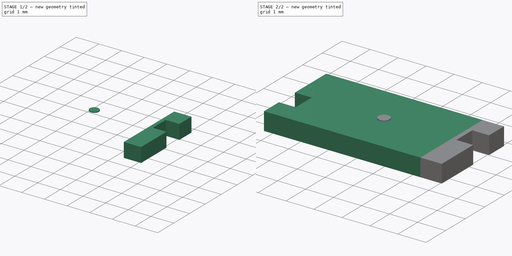
[diagram: build sequence overview — one tinted view per stage of 2, left to right]
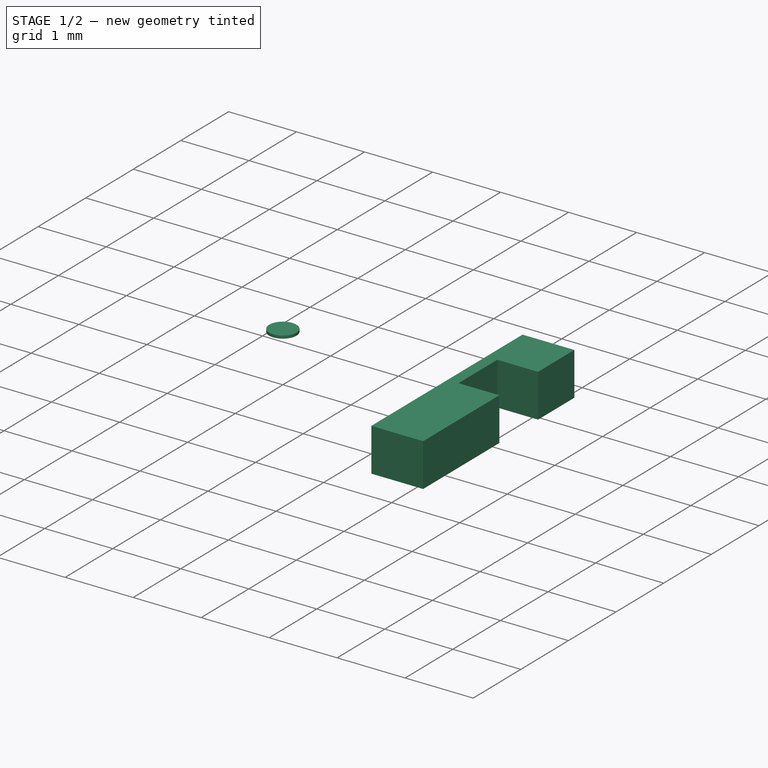
[diagram: stage 1 of 2 — iso view after this stage's code; geometry added in this stage tinted green]
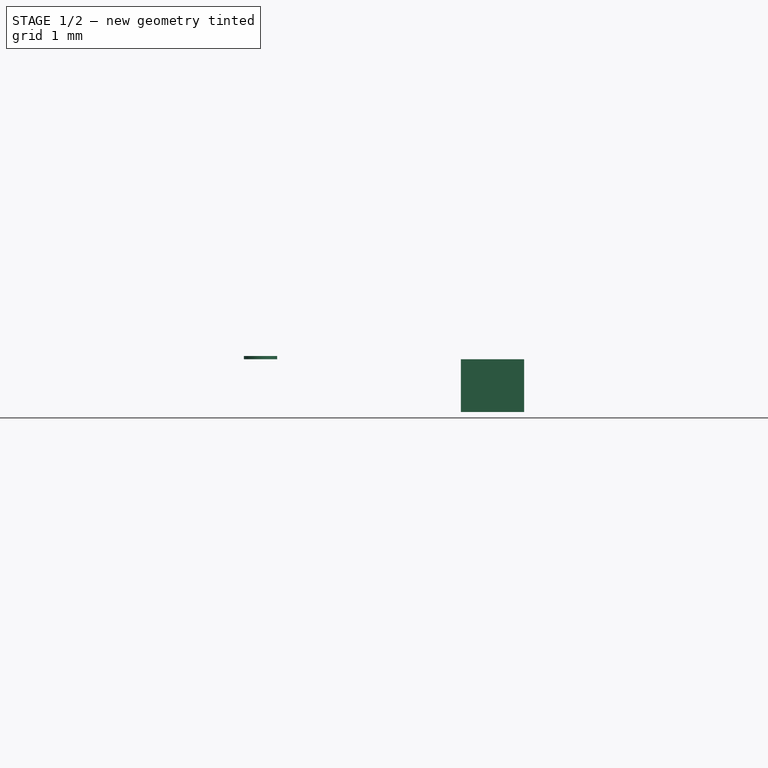
[diagram: stage 1 of 2 — front view after this stage's code; geometry added in this stage tinted green]
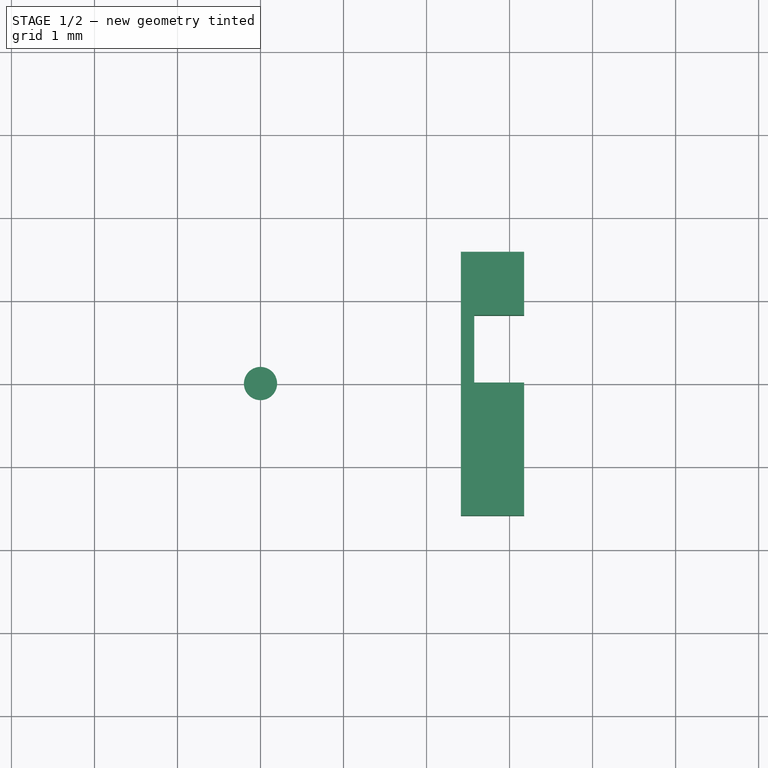
[diagram: stage 1 of 2 — top view after this stage's code; geometry added in this stage tinted green]
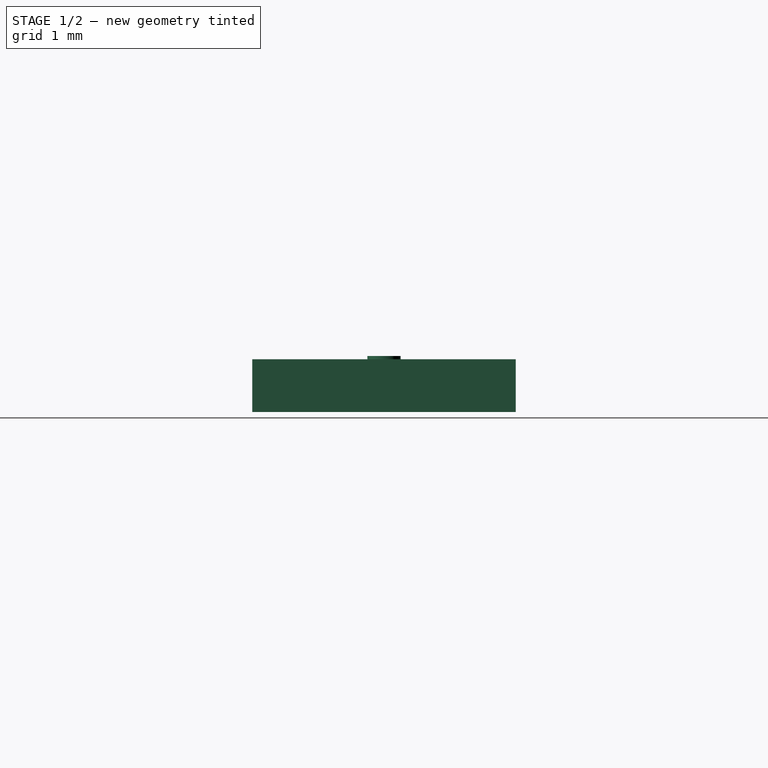
[diagram: stage 1 of 2 — right view after this stage's code; geometry added in this stage tinted green]
FCSTD DOCUMENT  (FreeCAD 1.0R38641 +468 (Git))
Label: CSM2512_0R007_0R2-1
License: All rights reserved
objects: Sketcher::SketchObject×3, PartDesign::Pad×3, PartDesign::Body×3, Spreadsheet::Sheet×1, Part::FeaturePython×1
note: 19 computed .brp shape members not serialized (recipe doc carries the construction recipe); baked Part::Feature solids carry a one-line shape summary decoded from their .brp

FEATURE [PartDesign::Body] Body
  AllowCompound = false
  Group = -> [Sketch001,Pad]
  Origin = -> Origin
  Tip = -> Pad
FEATURE [Sketcher::SketchObject] Sketch
  ArcFitTolerance = 0
  AttachmentSupport = -> [XY_Plane001]
  FullyConstrained = true
  MakeInternals = false
  MapMode = 5
  expr: Constraints[21] = <<Master>>.body_len
  expr: Constraints[24] = <<Master>>.width
  expr: Constraints[26] = <<Master>>.pin_length
  sketch-geometry (10):
    g0: LineSegment StartX=2.413 StartY=-1.5875 StartZ=0 EndX=2.413 EndY=1.5875 EndZ=0
    g1: LineSegment StartX=2.413 StartY=1.5875 StartZ=0 EndX=3.175 EndY=1.5875 EndZ=0
    g2: LineSegment StartX=3.175 StartY=1.5875 StartZ=0 EndX=3.175 EndY=0.8255 EndZ=0
    g3: LineSegment StartX=3.175 StartY=0.8255 StartZ=0 EndX=2.575 EndY=0.8255 EndZ=0
    g4: LineSegment StartX=2.575 StartY=0.8255 StartZ=0 EndX=2.575 EndY=0.0125 EndZ=0
    g5: LineSegment StartX=2.575 StartY=0.0125 StartZ=0 EndX=3.175 EndY=0.0125 EndZ=0
    g6: LineSegment StartX=3.175 StartY=0.0125 StartZ=0 EndX=3.175 EndY=-1.5875 EndZ=0
    g7: LineSegment StartX=3.175 StartY=-1.5875 StartZ=0 EndX=2.413 EndY=-1.5875 EndZ=0
    g8: LineSegment [constr] StartX=3.175 StartY=0.8255 StartZ=0 EndX=3.175 EndY=0.0125 EndZ=0
    g9: LineSegment [constr] StartX=2.413 StartY=-1.5875 StartZ=0 EndX=-2.413 EndY=-1.5875 EndZ=0
  constraints (27):
    c: Coincident(g0,g1)
    c: Horizontal(g1)
    c: Coincident(g1,g2)
    c: Coincident(g2,g3)
    c: Horizontal(g3)
    c: Coincident(g3,g4)
    c: Vertical(g4)
    c: Coincident(g4,g5)
    c: Horizontal(g5)
    c: Coincident(g5,g6)
    c: Coincident(g6,g7)
    c: Coincident(g7,g0)
    c: Horizontal(g7)
    c: Vertical(g6)
    c: Vertical(g2)
    c: Coincident(g8,g2)
    c: Coincident(g8,g5)
    c: Vertical(g8)
    c: Coincident(g9,g0)
    c: Symmetric(g0,g9,g-2)
    c: Symmetric(g0,g0,g-1)
    c: DistanceX(g9,g9) = 4.826
    c: Distance(g2,g2) = 0.762
    c: Distance(g8,g8) = 0.813
    c: Distance(g1,g6) = 3.175
    c: Distance(g5,g5) = 0.6
    c: Distance(g1,g1) = 0.762
FEATURE [PartDesign::Pad] Pad001
  Direction = (0,0,1)
  Length = 0.635
  Length2 = 10
  Profile = -> Sketch
  ReferenceAxis = -> Sketch [N_Axis]
  Suppressed = false
  Type = 0
  expr: Length = <<Master>>.height
FEATURE [Sketcher::SketchObject] Sketch002
  ArcFitTolerance = 0
  AttachmentOffset = pos=(0,0,0.635) rot=(0,0,1;0rad)
  AttachmentSupport = -> [XY_Plane002]
  FullyConstrained = true
  MakeInternals = false
  MapMode = 5
  Placement = pos=(0,0,0.635) rot=(0,0,1;0rad)
  expr: .AttachmentOffset.Base.z = <<Master>>.height
  sketch-geometry (1):
    g0: Circle CenterX=0 CenterY=0 CenterZ=0 NormalX=0 NormalY=0 NormalZ=1 AngleXU=0 Radius=0.2
  constraints (2):
    c: Coincident(g-1,g0)
    c: Radius(g0) = 0.2
FEATURE [PartDesign::Pad] Pad002
  Direction = (0,0,1)
  Length = 0.04
  Length2 = 10
  Profile = -> Sketch002
  ReferenceAxis = -> Sketch002 [N_Axis]
  Suppressed = false
  Type = 0
FEATURE [PartDesign::Body] Body002  label="Marker"
  AllowCompound = false
  Group = -> [Sketch002,Pad002]
  Origin = -> Origin002
  Tip = -> Pad002
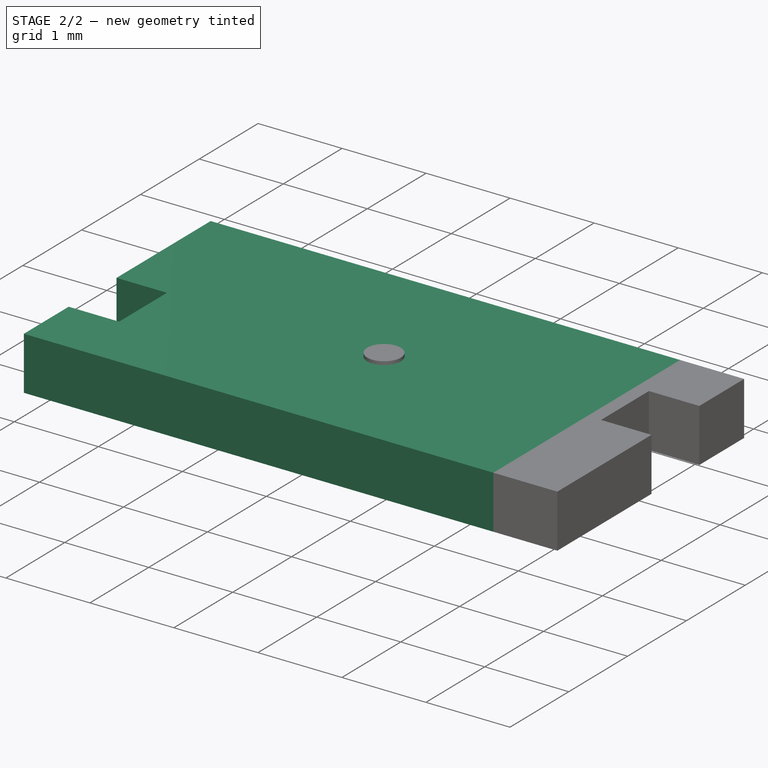
[diagram: stage 2 of 2 — iso view after this stage's code; geometry added in this stage tinted green]
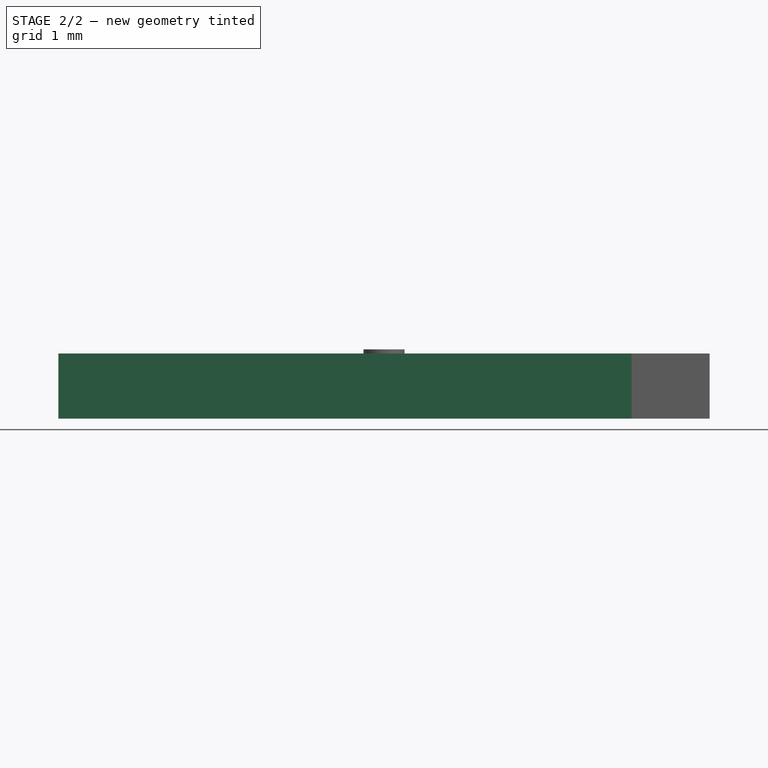
[diagram: stage 2 of 2 — front view after this stage's code; geometry added in this stage tinted green]
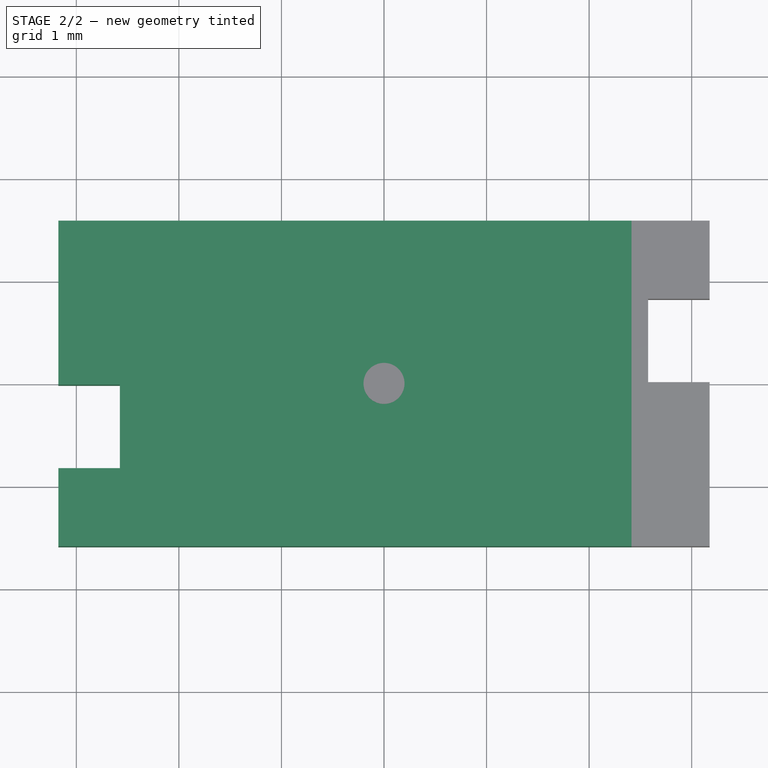
[diagram: stage 2 of 2 — top view after this stage's code; geometry added in this stage tinted green]
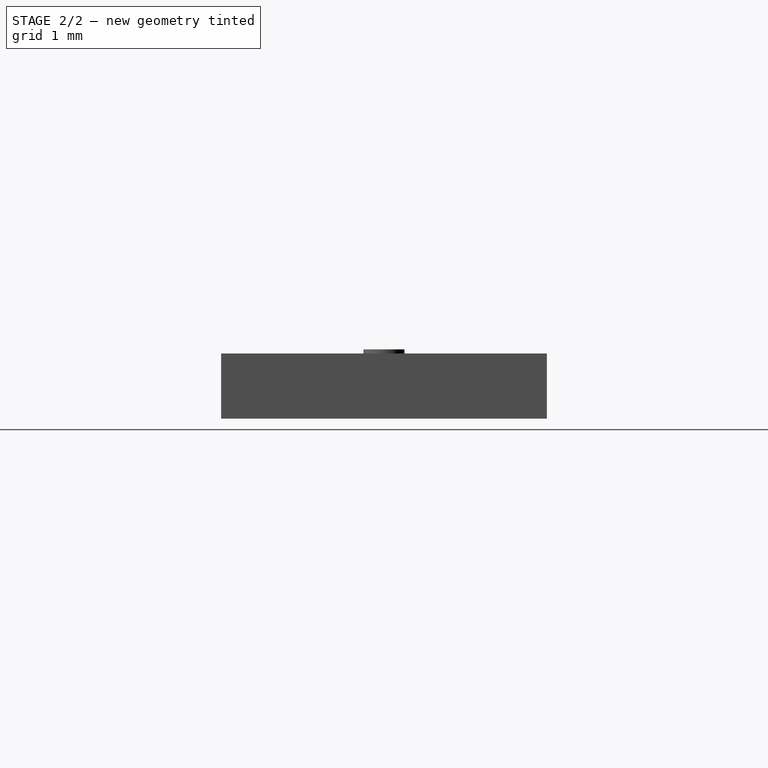
[diagram: stage 2 of 2 — right view after this stage's code; geometry added in this stage tinted green]
FEATURE [Spreadsheet::Sheet] Spreadsheet  label="Master"
  cells = A1='Body Constants; A2='length; B2(length)==6.35 mm; C2='Length of housing; A3='width; B3(width)==3.175 mm; C3='Width of housing; A4='height; B4(height)==0.635 mm; C4='Height of housing; A6='Pin Constants; A7='pin_length; B7(pin_length)==0.762 mm; C7='Pin to body length; A9='Calculated; A10='Body length; B10(body_len)==length - 2 * pin_length; C10='Pin opening offset from edge
FEATURE [Sketcher::SketchObject] Sketch001
  ArcFitTolerance = 0
  AttachmentSupport = -> [XY_Plane]
  FullyConstrained = true
  MakeInternals = false
  MapMode = 5
  expr: Constraints[8] = <<Master>>.width
  expr: Constraints[9] = <<Master>>.body_len
  sketch-geometry (4):
    g0: LineSegment StartX=-2.413 StartY=1.5875 StartZ=0 EndX=2.413 EndY=1.5875 EndZ=0
    g1: LineSegment StartX=2.413 StartY=1.5875 StartZ=0 EndX=2.413 EndY=-1.5875 EndZ=0
    g2: LineSegment StartX=2.413 StartY=-1.5875 StartZ=0 EndX=-2.413 EndY=-1.5875 EndZ=0
    g3: LineSegment StartX=-2.413 StartY=-1.5875 StartZ=0 EndX=-2.413 EndY=1.5875 EndZ=0
  constraints (10):
    c: Coincident(g0,g1)
    c: Coincident(g1,g2)
    c: Coincident(g2,g3)
    c: Coincident(g3,g0)
    c: Horizontal(g0)
    c: Vertical(g1)
    c: Symmetric(g2,g1,g-2)
    c: Symmetric(g0,g2,g-1)
    c: DistanceY(g3,g3) = 3.175
    c: DistanceX(g2,g2) = 4.826
FEATURE [PartDesign::Pad] Pad
  Direction = (0,0,1)
  Length = 0.635
  Length2 = 10
  Profile = -> Sketch001
  ReferenceAxis = -> Sketch001 [N_Axis]
  Suppressed = false
  Type = 0
  expr: Length = <<Master>>.height
FEATURE [PartDesign::Body] Body001
  AllowCompound = false
  Group = -> [Sketch,Pad001]
  Origin = -> Origin001
  Tip = -> Pad001
FEATURE [Part::FeaturePython] Array  # Draft array (typed FeaturePython)
  Angle = 180
  ArrayType = 1
  Axis = (0,0,1)
  Base = -> Body001
  Center = (0,0,0)
  Count = 2
  Fuse = false
  IntervalAxis = (0,0,0)
  IntervalX = (50,0,0)
  IntervalY = (0,50,0)
  IntervalZ = (0,0,50)
  NumberCircles = 3
  NumberPolar = 2
  NumberX = 2
  NumberY = 2
  NumberZ = 1
  RadialDistance = 50
  Symmetry = 1
  TangentialDistance = 25
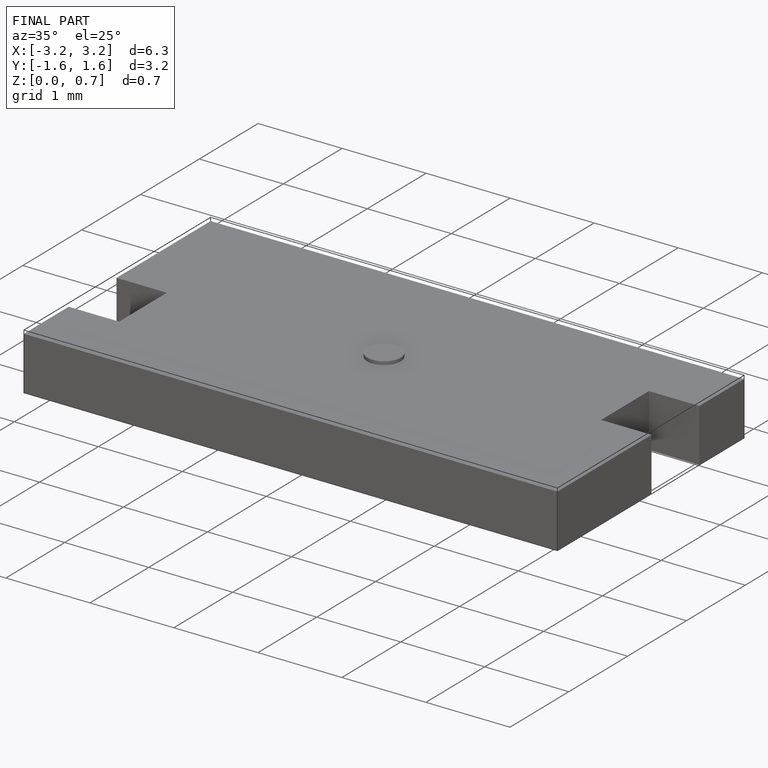
[diagram: finished part — iso view with bounding-box wireframe]
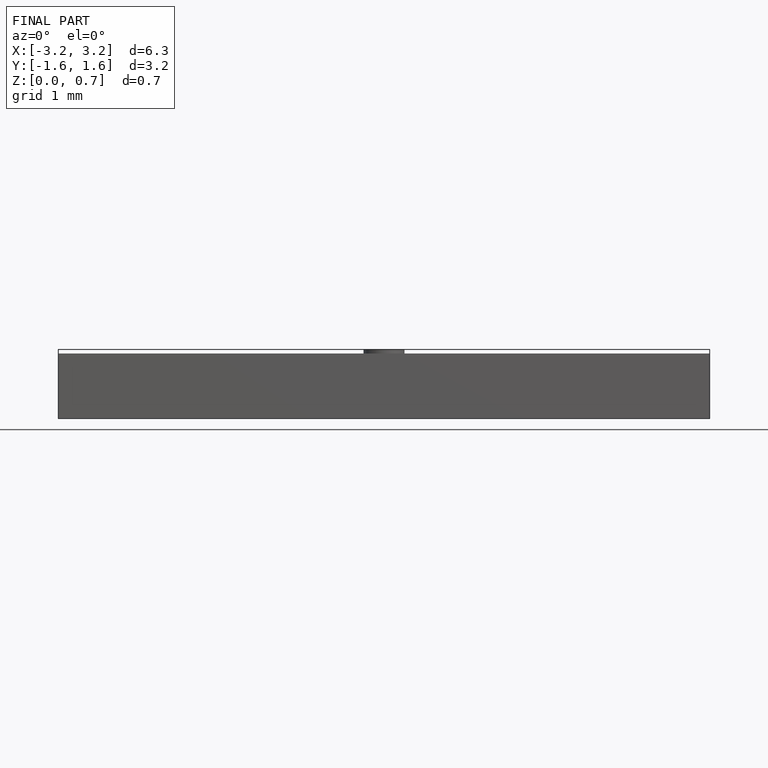
[diagram: finished part — front view with bounding-box wireframe]
